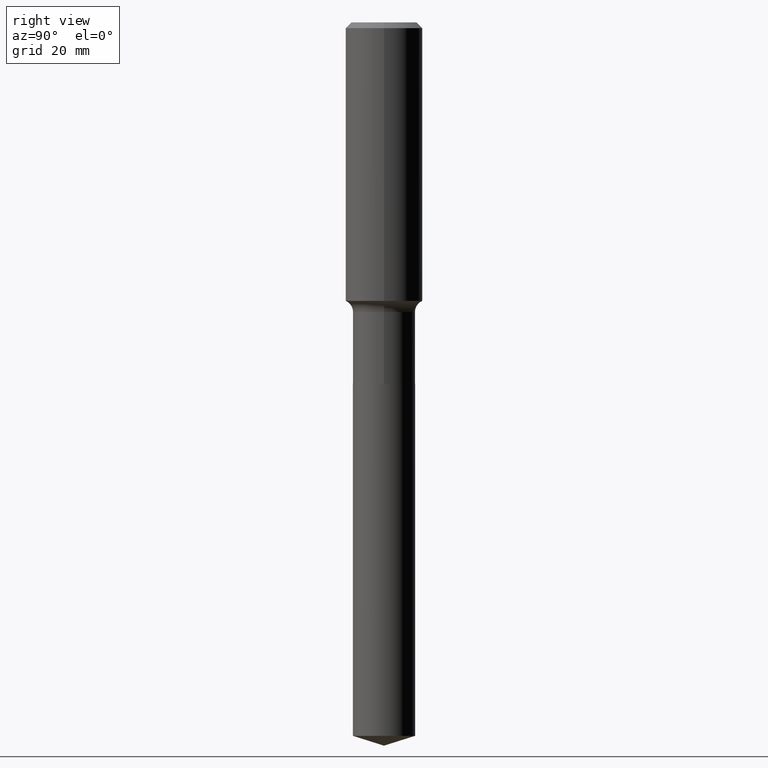
[diagram: clean part render]
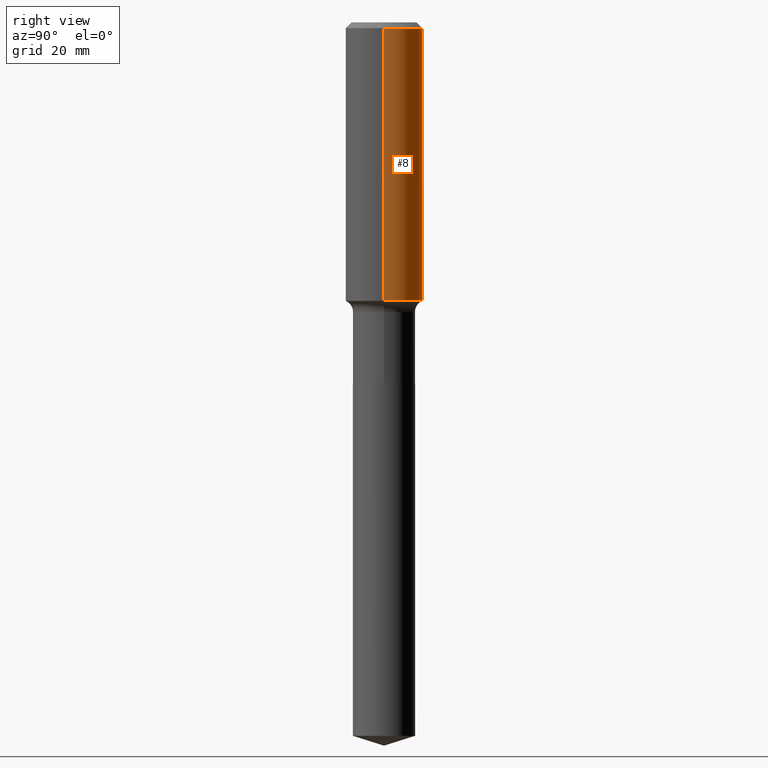
[diagram: same view with one face highlighted and labeled with its STEP entity id]
A machine part, right view. The second image highlights one B-rep face of the part: STEP entity #8.
In plain terms, the highlighted cylindrical surface (partial cylindrical patch) has radius 6.35 mm, axis along (-0, 0, 1).
Its self-contained STEP definition (entity closure, byte-faithful):
#7 = CARTESIAN_POINT ( 'NONE',  ( -0.2500000000000002776, -4.525417829077741609E-15, -1.804900000000000171 ) ) ;
#8 = ADVANCED_FACE ( 'NONE', ( #311 ), #357, .T. ) ;
#12 = CIRCLE ( 'NONE', #207, 0.2500000000000000000 ) ;
#21 = CARTESIAN_POINT ( 'NONE',  ( -0.2500000000000001110, 1.776356839400251254E-15, -1.229733772563727006E-29 ) ) ;
#36 = EDGE_CURVE ( 'NONE', #360, #81, #174, .T. ) ;
#48 = CARTESIAN_POINT ( 'NONE',  ( 9.170508023194327749E-31, -1.309305502066188813E-16, -0.03750000000000026923 ) ) ;
#54 = CARTESIAN_POINT ( 'NONE',  ( 0.2500000000000002776, -8.047515337899561907E-15, -1.804900000000000171 ) ) ;
#76 = ORIENTED_EDGE ( 'NONE', *, *, #369, .T. ) ;
#81 = VERTEX_POINT ( 'NONE', #7 ) ;
#85 = CARTESIAN_POINT ( 'NONE',  ( 0.2500000000000000000, -1.876671219628185756E-15, -0.03750000000000026923 ) ) ;
#91 = EDGE_CURVE ( 'NONE', #360, #244, #97, .T. ) ;
#97 = LINE ( 'NONE', #466, #373 ) ;
#106 = AXIS2_PLACEMENT_3D ( 'NONE', #437, #116, #131 ) ;
#112 = CARTESIAN_POINT ( 'NONE',  ( -0.2500000000000000000, -1.439995769942055506E-15, -0.03750000000000026923 ) ) ;
#116 = DIRECTION ( 'NONE',  ( -2.445468806185136597E-29, 3.491481338843145583E-15, 1.000000000000000000 ) ) ;
#118 = DIRECTION ( 'NONE',  ( -2.445468806185136877E-29, 3.491481338843145188E-15, 1.000000000000000000 ) ) ;
#125 = LINE ( 'NONE', #21, #193 ) ;
#131 = DIRECTION ( 'NONE',  ( 1.000000000000000000, -6.982962677686266711E-15, 4.876176775795935793E-29 ) ) ;
#166 = DIRECTION ( 'NONE',  ( -2.445468806185136877E-29, 3.491481338843145188E-15, 1.000000000000000000 ) ) ;
#174 = CIRCLE ( 'NONE', #424, 0.2500000000000002220 ) ;
#182 = EDGE_CURVE ( 'NONE', #244, #307, #12, .T. ) ;
#187 = ORIENTED_EDGE ( 'NONE', *, *, #182, .F. ) ;
#193 = VECTOR ( 'NONE', #166, 39.37007874015748143 ) ;
#207 = AXIS2_PLACEMENT_3D ( 'NONE', #48, #473, #383 ) ;
#212 = DIRECTION ( 'NONE',  ( 1.000000000000000000, -6.982962677686264344E-15, 0.000000000000000000 ) ) ;
#220 = ORIENTED_EDGE ( 'NONE', *, *, #36, .T. ) ;
#244 = VERTEX_POINT ( 'NONE', #85 ) ;
#273 = ORIENTED_EDGE ( 'NONE', *, *, #91, .F. ) ;
#275 = CARTESIAN_POINT ( 'NONE',  ( 4.413826648283553199E-29, -6.301774668477994440E-15, -1.804900000000000171 ) ) ;
#292 = DIRECTION ( 'NONE',  ( -2.445468806185136597E-29, 3.491481338843145583E-15, 1.000000000000000000 ) ) ;
#307 = VERTEX_POINT ( 'NONE', #112 ) ;
#311 = FACE_OUTER_BOUND ( 'NONE', #370, .T. ) ;
#357 = CYLINDRICAL_SURFACE ( 'NONE', #106, 0.2500000000000001110 ) ;
#360 = VERTEX_POINT ( 'NONE', #54 ) ;
#369 = EDGE_CURVE ( 'NONE', #81, #307, #125, .T. ) ;
#370 = EDGE_LOOP ( 'NONE', ( #220, #76, #187, #273 ) ) ;
#373 = VECTOR ( 'NONE', #118, 39.37007874015748143 ) ;
#383 = DIRECTION ( 'NONE',  ( 1.000000000000000000, -6.982962677686266711E-15, 0.000000000000000000 ) ) ;
#424 = AXIS2_PLACEMENT_3D ( 'NONE', #275, #292, #212 ) ;
#437 = CARTESIAN_POINT ( 'NONE',  ( 0.000000000000000000, 0.000000000000000000, 0.000000000000000000 ) ) ;
#466 = CARTESIAN_POINT ( 'NONE',  ( 0.2500000000000001110, -1.745740669421567467E-15, 1.219044193948984509E-29 ) ) ;
#473 = DIRECTION ( 'NONE',  ( -2.445468806185136597E-29, 3.491481338843145583E-15, 1.000000000000000000 ) ) ;